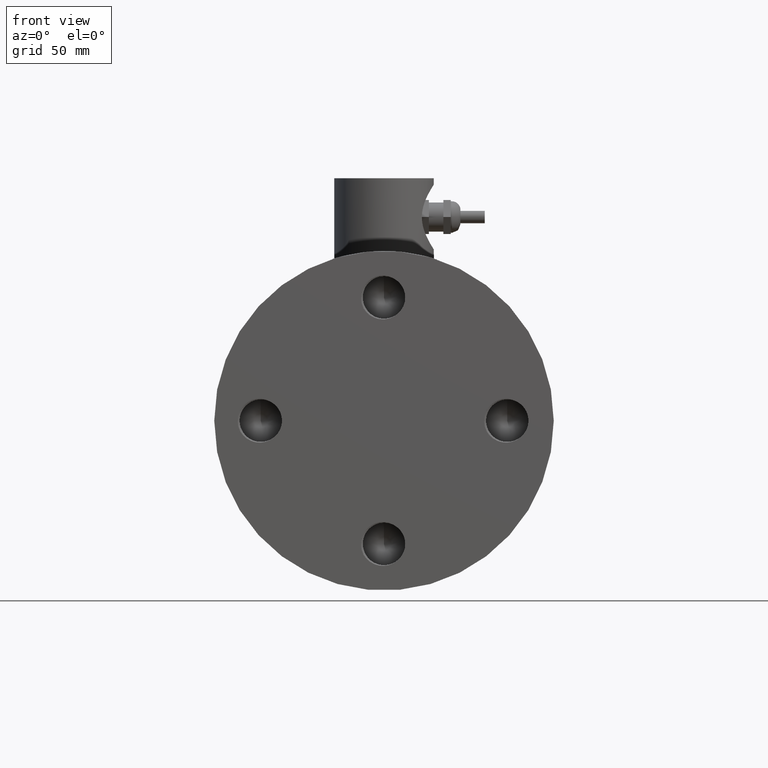
[diagram: clean part render]
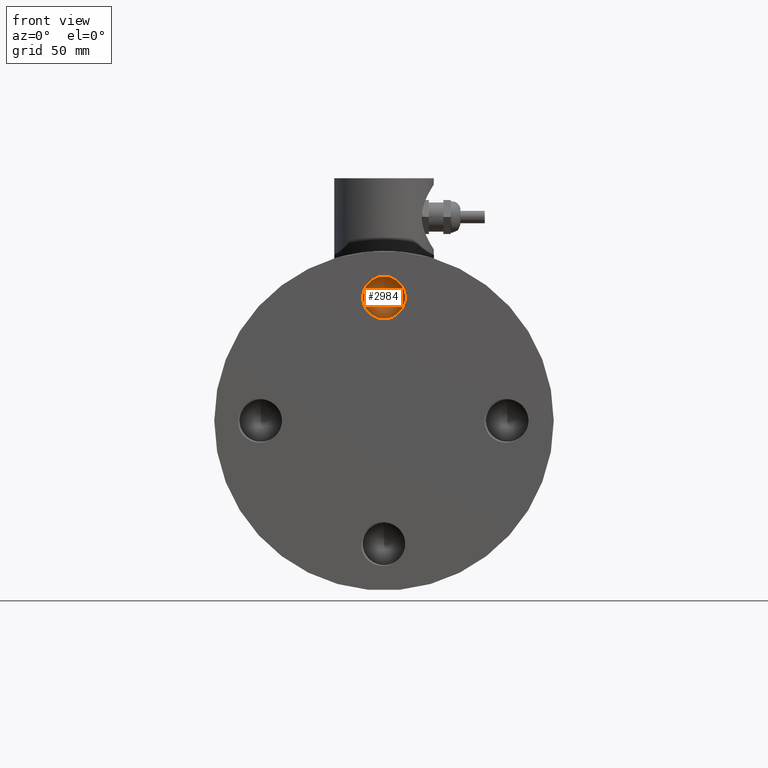
[diagram: same view with one face highlighted and labeled with its STEP entity id]
A machine part, front view. The second image highlights one B-rep face of the part: STEP entity #2984.
In plain terms, the highlighted conical surface has half-angle 59 deg.
Its self-contained STEP definition (entity closure, byte-faithful):
#17=CONICAL_SURFACE('',#3198,0.179409441332485,1.02974425867665);
#471=FACE_OUTER_BOUND('',#649,.T.);
#649=EDGE_LOOP('',(#2608,#2609,#2610,#2611,#2612));
#829=LINE('',#16504,#992);
#992=VECTOR('',#3756,0.1875);
#1013=CIRCLE('',#3077,0.3445);
#1027=CIRCLE('',#3179,0.3445);
#1028=CIRCLE('',#3180,0.3445);
#1142=VERTEX_POINT('',#5380);
#1143=VERTEX_POINT('',#5409);
#1318=VERTEX_POINT('',#9887);
#1324=VERTEX_POINT('',#16503);
#1470=EDGE_CURVE('',#1142,#1143,#1013,.T.);
#1726=EDGE_CURVE('',#1143,#1318,#1027,.T.);
#1727=EDGE_CURVE('',#1318,#1142,#1028,.T.);
#1768=EDGE_CURVE('',#1318,#1324,#829,.T.);
#2608=ORIENTED_EDGE('',*,*,#1726,.F.);
#2609=ORIENTED_EDGE('',*,*,#1470,.F.);
#2610=ORIENTED_EDGE('',*,*,#1727,.F.);
#2611=ORIENTED_EDGE('',*,*,#1768,.T.);
#2612=ORIENTED_EDGE('',*,*,#1768,.F.);
#2984=ADVANCED_FACE('',(#471),#17,.F.);
#3077=AXIS2_PLACEMENT_3D('',#5410,#3433,#3434);
#3179=AXIS2_PLACEMENT_3D('',#9888,#3714,#3715);
#3180=AXIS2_PLACEMENT_3D('',#9889,#3716,#3717);
#3198=AXIS2_PLACEMENT_3D('',#16502,#3754,#3755);
#3433=DIRECTION('center_axis',(0.,1.,0.));
#3434=DIRECTION('ref_axis',(0.,0.,-1.));
#3714=DIRECTION('center_axis',(0.,1.,0.));
#3715=DIRECTION('ref_axis',(0.,0.,-1.));
#3716=DIRECTION('center_axis',(0.,1.,0.));
#3717=DIRECTION('ref_axis',(0.,0.,-1.));
#3754=DIRECTION('center_axis',(0.,-1.,0.));
#3755=DIRECTION('ref_axis',(0.,0.,-1.));
#3756=DIRECTION('',(-1.04972719113862E-16,0.515038074910054,-0.857167300702112));
#5380=CARTESIAN_POINT('',(-0.332512245747496,0.78740157480315,1.90991195180294));
#5409=CARTESIAN_POINT('',(-0.0238784480626241,0.787401574803149,2.34367145607123));
#5410=CARTESIAN_POINT('Origin',(1.22464679914735E-16,0.78740157480315,2.));
#9887=CARTESIAN_POINT('',(1.64653762145362E-16,0.787401574803149,2.3445));
#9888=CARTESIAN_POINT('Origin',(1.22464679914735E-16,0.78740157480315,2.));
#9889=CARTESIAN_POINT('Origin',(1.22464679914735E-16,0.78740157480315,2.));
#16502=CARTESIAN_POINT('Origin',(1.22464679914735E-16,0.886597990079719,
2.));
#16503=CARTESIAN_POINT('',(1.22464679914735E-16,0.994398058058144,2.));
#16504=CARTESIAN_POINT('',(1.444359997212E-16,0.886597990079719,2.17940944133248));